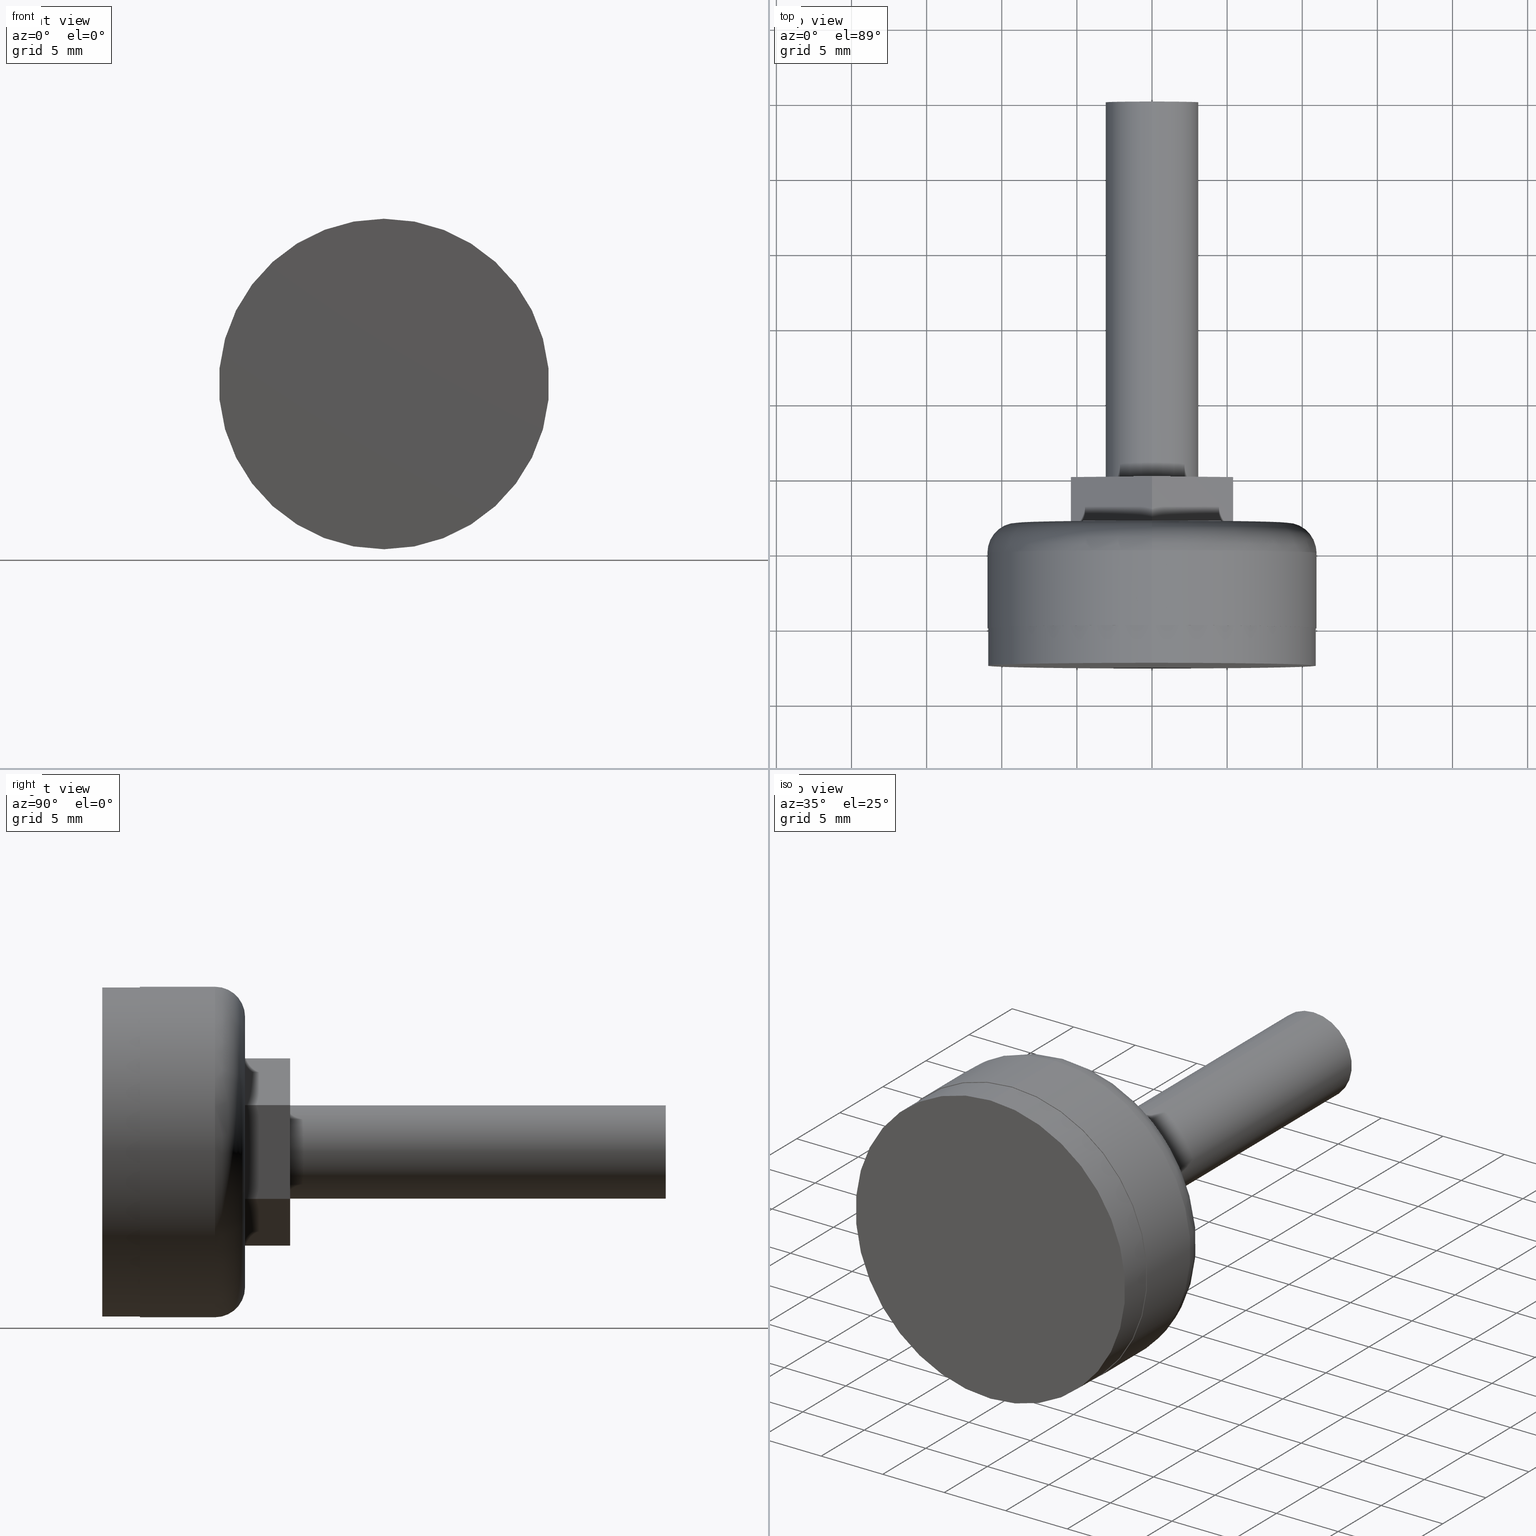
[diagram: canonical four-view strip — front | top / right | iso, engineering-drawing reading convention]
A machine part, canonical four-view strip (front | top / right | iso — engineering-drawing reading convention). The complete STEP part file that produces these views, byte-faithful:
ISO-10303-21;
HEADER;
FILE_DESCRIPTION (( 'STEP AP203' ),
    '1' );
FILE_NAME ('SA221-438FN.STEP',
    '2018-03-27T13:55:49',
    ( 'User2' ),
    ( '' ),
    'SwSTEP 2.0',
    'SolidWorks 2007',
    '' );
FILE_SCHEMA (( 'CONFIG_CONTROL_DESIGN' ));
ENDSEC;

DATA;
#1 = EDGE_CURVE ( 'NONE', #73, #89, #267, .T. ) ;
#2 = EDGE_CURVE ( 'NONE', #63, #86, #265, .T. ) ;
#3 = EDGE_CURVE ( 'NONE', #90, #63, #262, .T. ) ;
#4 = EDGE_CURVE ( 'NONE', #76, #86, #272, .T. ) ;
#5 = EDGE_CURVE ( 'NONE', #88, #83, #290, .T. ) ;
#6 = AXIS2_PLACEMENT_3D ( 'NONE', #584, #566, #553 ) ;
#7 = EDGE_CURVE ( 'NONE', #85, #91, #275, .T. ) ;
#8 = EDGE_CURVE ( 'NONE', #71, #90, #292, .T. ) ;
#9 = EDGE_CURVE ( 'NONE', #73, #80, #302, .T. ) ;
#10 = EDGE_CURVE ( 'NONE', #67, #63, #303, .T. ) ;
#11 = EDGE_CURVE ( 'NONE', #72, #71, #288, .T. ) ;
#12 = AXIS2_PLACEMENT_3D ( 'NONE', #570, #592, #548 ) ;
#13 = EDGE_CURVE ( 'NONE', #79, #66, #336, .T. ) ;
#14 = EDGE_CURVE ( 'NONE', #66, #88, #339, .T. ) ;
#15 = EDGE_CURVE ( 'NONE', #94, #80, #286, .T. ) ;
#16 = EDGE_CURVE ( 'NONE', #66, #81, #334, .T. ) ;
#17 = AXIS2_PLACEMENT_3D ( 'NONE', #201, #192, #208 ) ;
#18 = EDGE_CURVE ( 'NONE', #83, #88, #287, .T. ) ;
#19 = AXIS2_PLACEMENT_3D ( 'NONE', #130, #116, #109 ) ;
#20 = AXIS2_PLACEMENT_3D ( 'NONE', #178, #172, #167 ) ;
#21 = EDGE_CURVE ( 'NONE', #77, #68, #285, .T. ) ;
#22 = EDGE_CURVE ( 'NONE', #68, #77, #282, .T. ) ;
#23 = EDGE_CURVE ( 'NONE', #80, #94, #281, .T. ) ;
#24 = EDGE_CURVE ( 'NONE', #71, #67, #283, .T. ) ;
#25 = AXIS2_PLACEMENT_3D ( 'NONE', #203, #207, #194 ) ;
#26 = EDGE_CURVE ( 'NONE', #79, #83, #310, .T. ) ;
#27 = EDGE_CURVE ( 'NONE', #85, #69, #313, .T. ) ;
#28 = AXIS2_PLACEMENT_3D ( 'NONE', #591, #571, #569 ) ;
#29 = AXIS2_PLACEMENT_3D ( 'NONE', #557, #558, #585 ) ;
#30 = AXIS2_PLACEMENT_3D ( 'NONE', #158, #179, #166 ) ;
#31 = AXIS2_PLACEMENT_3D ( 'NONE', #219, #218, #182 ) ;
#32 = AXIS2_PLACEMENT_3D ( 'NONE', #561, #590, #575 ) ;
#33 = EDGE_CURVE ( 'NONE', #81, #70, #316, .T. ) ;
#34 = AXIS2_PLACEMENT_3D ( 'NONE', #61, #84, #87 ) ;
#35 = EDGE_CURVE ( 'NONE', #69, #72, #291, .T. ) ;
#36 = AXIS2_PLACEMENT_3D ( 'NONE', #577, #578, #551 ) ;
#37 = EDGE_CURVE ( 'NONE', #90, #76, #296, .T. ) ;
#38 = EDGE_CURVE ( 'NONE', #79, #70, #295, .T. ) ;
#39 = EDGE_CURVE ( 'NONE', #59, #77, #261, .T. ) ;
#40 = AXIS2_PLACEMENT_3D ( 'NONE', #573, #583, #574 ) ;
#41 = EDGE_CURVE ( 'NONE', #91, #92, #301, .T. ) ;
#42 = EDGE_CURVE ( 'NONE', #59, #75, #330, .T. ) ;
#43 = EDGE_CURVE ( 'NONE', #89, #94, #255, .T. ) ;
#44 = AXIS2_PLACEMENT_3D ( 'NONE', #204, #184, #191 ) ;
#45 = AXIS2_PLACEMENT_3D ( 'NONE', #212, #160, #168 ) ;
#46 = EDGE_CURVE ( 'NONE', #75, #59, #325, .T. ) ;
#47 = EDGE_CURVE ( 'NONE', #75, #68, #331, .T. ) ;
#48 = AXIS2_PLACEMENT_3D ( 'NONE', #82, #74, #93 ) ;
#49 = AXIS2_PLACEMENT_3D ( 'NONE', #562, #564, #588 ) ;
#50 = AXIS2_PLACEMENT_3D ( 'NONE', #174, #165, #210 ) ;
#51 = AXIS2_PLACEMENT_3D ( 'NONE', #563, #589, #595 ) ;
#52 = AXIS2_PLACEMENT_3D ( 'NONE', #195, #211, #216 ) ;
#53 = ADVANCED_FACE ( 'NONE', ( #332 ), #159, .T. ) ;
#54 = ADVANCED_FACE ( 'NONE', ( #256 ), #202, .F. ) ;
#55 = ADVANCED_FACE ( 'NONE', ( #297 ), #190, .F. ) ;
#56 = ADVANCED_FACE ( 'NONE', ( #314 ), #305, .T. ) ;
#57 = PRODUCT ( 'SA221-438FN', 'SA221-438FN', '', ( #437 ) ) ;
#58 = PERSON ( 'UNSPECIFIED', 'UNSPECIFIED', 'UNSPECIFIED', ('UNSPECIFIED'), ('UNSPECIFIED'), ('UNSPECIFIED') ) ;
#59 = VERTEX_POINT ( 'NONE', #164 ) ;
#60 = DIRECTION ( 'NONE',  ( 0.0000000000000000000, 0.0000000000000000000, 1.000000000000000000 ) ) ;
#61 = CARTESIAN_POINT ( 'NONE',  ( 0.0000000000000000000, 7.000000000000000000, 0.0000000000000000000 ) ) ;
#62 = CARTESIAN_POINT ( 'NONE',  ( -5.400000000000000400, 10.00000000000000000, -3.117691453623980400 ) ) ;
#63 = VERTEX_POINT ( 'NONE', #163 ) ;
#64 = VERTEX_POINT ( 'NONE', #180 ) ;
#65 = DIRECTION ( 'NONE',  ( -0.0000000000000000000, -1.000000000000000000, -0.0000000000000000000 ) ) ;
#66 = VERTEX_POINT ( 'NONE', #161 ) ;
#67 = VERTEX_POINT ( 'NONE', #198 ) ;
#68 = VERTEX_POINT ( 'NONE', #193 ) ;
#69 = VERTEX_POINT ( 'NONE', #187 ) ;
#70 = VERTEX_POINT ( 'NONE', #157 ) ;
#71 = VERTEX_POINT ( 'NONE', #175 ) ;
#72 = VERTEX_POINT ( 'NONE', #213 ) ;
#73 = VERTEX_POINT ( 'NONE', #181 ) ;
#74 = DIRECTION ( 'NONE',  ( 0.0000000000000000000, -1.000000000000000000, 0.0000000000000000000 ) ) ;
#75 = VERTEX_POINT ( 'NONE', #177 ) ;
#76 = VERTEX_POINT ( 'NONE', #217 ) ;
#77 = VERTEX_POINT ( 'NONE', #220 ) ;
#78 = CARTESIAN_POINT ( 'NONE',  ( -5.400000000000000400, 10.00000000000000000, 3.117691453623979900 ) ) ;
#79 = VERTEX_POINT ( 'NONE', #199 ) ;
#80 = VERTEX_POINT ( 'NONE', #162 ) ;
#81 = VERTEX_POINT ( 'NONE', #170 ) ;
#82 = CARTESIAN_POINT ( 'NONE',  ( 0.0000000000000000000, -2.500000000000000000, 0.0000000000000000000 ) ) ;
#83 = VERTEX_POINT ( 'NONE', #196 ) ;
#84 = DIRECTION ( 'NONE',  ( 0.0000000000000000000, 1.000000000000000000, 0.0000000000000000000 ) ) ;
#85 = VERTEX_POINT ( 'NONE', #173 ) ;
#86 = VERTEX_POINT ( 'NONE', #169 ) ;
#87 = DIRECTION ( 'NONE',  ( 0.0000000000000000000, 0.0000000000000000000, 1.000000000000000000 ) ) ;
#88 = VERTEX_POINT ( 'NONE', #186 ) ;
#89 = VERTEX_POINT ( 'NONE', #189 ) ;
#90 = VERTEX_POINT ( 'NONE', #215 ) ;
#91 = VERTEX_POINT ( 'NONE', #205 ) ;
#92 = VERTEX_POINT ( 'NONE', #214 ) ;
#93 = DIRECTION ( 'NONE',  ( 0.0000000000000000000, 0.0000000000000000000, -1.000000000000000000 ) ) ;
#94 = VERTEX_POINT ( 'NONE', #188 ) ;
#95 = DIRECTION ( 'NONE',  ( -0.0000000000000000000, -1.000000000000000000, -0.0000000000000000000 ) ) ;
#96 = CARTESIAN_POINT ( 'NONE',  ( -5.400000000000000400, 7.000000000000000000, -3.117691453623980400 ) ) ;
#97 = UNCERTAINTY_MEASURE_WITH_UNIT (LENGTH_MEASURE( 1.000000000000000100E-005 ), #432, 'distance_accuracy_value', 'NONE');
#98 = ADVANCED_FACE ( 'NONE', ( #312 ), #266, .T. ) ;
#99 = MANIFOLD_SOLID_BREP ( 'NONE', #271 ) ;
#100 = ADVANCED_FACE ( 'NONE', ( #270 ), #318, .T. ) ;
#101 = ADVANCED_FACE ( 'NONE', ( #257 ), #260, .T. ) ;
#102 = ADVANCED_FACE ( 'NONE', ( #263, #329 ), #200, .T. ) ;
#103 = ADVANCED_FACE ( 'NONE', ( #326, #322 ), #139, .T. ) ;
#104 = CARTESIAN_POINT ( 'NONE',  ( 0.0000000000000000000, 5.000000000000000000, 0.0000000000000000000 ) ) ;
#105 = DIRECTION ( 'NONE',  ( -0.0000000000000000000, -1.000000000000000000, -0.0000000000000000000 ) ) ;
#106 = CARTESIAN_POINT ( 'NONE',  ( -5.400000000000000400, 10.00000000000000000, 3.117691453623979900 ) ) ;
#107 = DIRECTION ( 'NONE',  ( -0.0000000000000000000, -1.000000000000000000, -0.0000000000000000000 ) ) ;
#108 = DIRECTION ( 'NONE',  ( -0.8660254037844384900, 0.0000000000000000000, -0.5000000000000002200 ) ) ;
#109 = DIRECTION ( 'NONE',  ( 0.0000000000000000000, 0.0000000000000000000, 1.000000000000000000 ) ) ;
#110 = DIRECTION ( 'NONE',  ( -0.0000000000000000000, -1.000000000000000000, -0.0000000000000000000 ) ) ;
#111 = DIRECTION ( 'NONE',  ( -0.8660254037844387100, 0.0000000000000000000, 0.4999999999999997800 ) ) ;
#112 = CARTESIAN_POINT ( 'NONE',  ( 5.399999999999999500, 7.000000000000000000, -3.117691453623979500 ) ) ;
#113 = CARTESIAN_POINT ( 'NONE',  ( -5.400000000000000400, 10.00000000000000000, -3.117691453623980400 ) ) ;
#114 = DIRECTION ( 'NONE',  ( 0.0000000000000000000, 0.0000000000000000000, -1.000000000000000000 ) ) ;
#115 = CARTESIAN_POINT ( 'NONE',  ( -5.400000000000000400, 10.00000000000000000, 3.117691453623979900 ) ) ;
#116 = DIRECTION ( 'NONE',  ( 0.0000000000000000000, 1.000000000000000000, -0.0000000000000000000 ) ) ;
#117 = DIRECTION ( 'NONE',  ( 0.8660254037844386000, 0.0000000000000000000, 0.5000000000000000000 ) ) ;
#118 = DIRECTION ( 'NONE',  ( 0.0000000000000000000, 1.000000000000000000, 0.0000000000000000000 ) ) ;
#119 = DIRECTION ( 'NONE',  ( 0.0000000000000000000, 0.0000000000000000000, -1.000000000000000000 ) ) ;
#120 = PLANE ( 'NONE',  #222 ) ;
#121 = CARTESIAN_POINT ( 'NONE',  ( 5.399999999999999500, 10.00000000000000000, 3.117691453623982600 ) ) ;
#122 = DIRECTION ( 'NONE',  ( 0.0000000000000000000, -0.0000000000000000000, 1.000000000000000000 ) ) ;
#123 = DIRECTION ( 'NONE',  ( 0.0000000000000000000, 0.0000000000000000000, 1.000000000000000000 ) ) ;
#124 = DIRECTION ( 'NONE',  ( 0.0000000000000000000, 1.000000000000000000, 0.0000000000000000000 ) ) ;
#125 = DIRECTION ( 'NONE',  ( -0.4999999999999998300, 0.0000000000000000000, -0.8660254037844388200 ) ) ;
#126 = CARTESIAN_POINT ( 'NONE',  ( 5.399999999999999500, 10.00000000000000000, -3.117691453623979500 ) ) ;
#127 = PLANE ( 'NONE',  #252 ) ;
#128 = CARTESIAN_POINT ( 'NONE',  ( 0.0000000000000000000, 0.0000000000000000000, 0.0000000000000000000 ) ) ;
#129 = CARTESIAN_POINT ( 'NONE',  ( -7.872804065101680700E-016, 10.00000000000000000, 6.235382907247959800 ) ) ;
#130 = CARTESIAN_POINT ( 'NONE',  ( -5.400000000000000400, 10.00000000000000000, -9.353074360871939800 ) ) ;
#131 = DIRECTION ( 'NONE',  ( -0.8660254037844386000, 0.0000000000000000000, -0.5000000000000000000 ) ) ;
#132 = CARTESIAN_POINT ( 'NONE',  ( 5.399999999999999500, 7.000000000000000000, 3.117691453623982600 ) ) ;
#133 = CARTESIAN_POINT ( 'NONE',  ( 0.0000000000000000000, 7.000000000000000000, 0.0000000000000000000 ) ) ;
#134 = DIRECTION ( 'NONE',  ( -0.0000000000000000000, -1.000000000000000000, -0.0000000000000000000 ) ) ;
#135 = DIRECTION ( 'NONE',  ( 0.8660254037844384900, 0.0000000000000000000, 0.5000000000000001100 ) ) ;
#136 = DIRECTION ( 'NONE',  ( 1.000000000000000000, 0.0000000000000000000, 0.0000000000000000000 ) ) ;
#137 = DIRECTION ( 'NONE',  ( 0.8660254037844384900, 0.0000000000000000000, 0.5000000000000001100 ) ) ;
#138 = PLANE ( 'NONE',  #232 ) ;
#139 = PLANE ( 'NONE',  #241 ) ;
#140 = CARTESIAN_POINT ( 'NONE',  ( 0.0000000000000000000, 35.00000000000000000, 0.0000000000000000000 ) ) ;
#141 = DIRECTION ( 'NONE',  ( 0.0000000000000000000, 0.0000000000000000000, 1.000000000000000000 ) ) ;
#142 = CARTESIAN_POINT ( 'NONE',  ( 5.399999999999999500, 10.00000000000000000, -3.117691453623979500 ) ) ;
#143 = DIRECTION ( 'NONE',  ( -0.5000000000000001100, 0.0000000000000000000, 0.8660254037844387100 ) ) ;
#144 = PLANE ( 'NONE',  #236 ) ;
#145 = DIRECTION ( 'NONE',  ( 0.5000000000000003300, 0.0000000000000000000, -0.8660254037844386000 ) ) ;
#146 = DIRECTION ( 'NONE',  ( 0.0000000000000000000, 0.0000000000000000000, -1.000000000000000000 ) ) ;
#147 = CARTESIAN_POINT ( 'NONE',  ( 0.0000000000000000000, -2.500000000000000000, 0.0000000000000000000 ) ) ;
#148 = DIRECTION ( 'NONE',  ( 0.0000000000000000000, 0.0000000000000000000, -1.000000000000000000 ) ) ;
#149 = DIRECTION ( 'NONE',  ( 0.0000000000000000000, -1.000000000000000000, 0.0000000000000000000 ) ) ;
#150 = CARTESIAN_POINT ( 'NONE',  ( -5.400000000000000400, 7.000000000000000000, 3.117691453623979900 ) ) ;
#151 = ADVANCED_FACE ( 'NONE', ( #327 ), #276, .T. ) ;
#152 = ADVANCED_FACE ( 'NONE', ( #321 ), #120, .F. ) ;
#153 = ADVANCED_FACE ( 'NONE', ( #317 ), #144, .F. ) ;
#154 = ADVANCED_BREP_SHAPE_REPRESENTATION ( 'SA221-438FN', ( #99, #246 ), #388 ) ;
#155 = ADVANCED_FACE ( 'NONE', ( #308 ), #127, .F. ) ;
#156 = ADVANCED_FACE ( 'NONE', ( #320 ), #138, .F. ) ;
#157 = CARTESIAN_POINT ( 'NONE',  ( 0.0000000000000000000, 0.0000000000000000000, -11.00000000000000000 ) ) ;
#158 = CARTESIAN_POINT ( 'NONE',  ( 0.0000000000000000000, 7.000000000000000000, 0.0000000000000000000 ) ) ;
#159 = PLANE ( 'NONE',  #31 ) ;
#160 = DIRECTION ( 'NONE',  ( 0.0000000000000000000, 1.000000000000000000, 0.0000000000000000000 ) ) ;
#161 = CARTESIAN_POINT ( 'NONE',  ( 1.347111479062088400E-015, 5.000000000000000000, 11.00000000000000000 ) ) ;
#162 = CARTESIAN_POINT ( 'NONE',  ( 1.340988245066351700E-015, 0.0000000000000000000, -10.94999999999999900 ) ) ;
#163 = CARTESIAN_POINT ( 'NONE',  ( -5.400000000000000400, 7.000000000000000000, -3.117691453623980400 ) ) ;
#164 = CARTESIAN_POINT ( 'NONE',  ( 3.796405077356794900E-016, 35.00000000000000000, 3.100000000000000100 ) ) ;
#165 = DIRECTION ( 'NONE',  ( 0.0000000000000000000, 1.000000000000000000, 0.0000000000000000000 ) ) ;
#166 = DIRECTION ( 'NONE',  ( 0.0000000000000000000, 0.0000000000000000000, -1.000000000000000000 ) ) ;
#167 = DIRECTION ( 'NONE',  ( 0.0000000000000000000, 0.0000000000000000000, -1.000000000000000000 ) ) ;
#168 = DIRECTION ( 'NONE',  ( 0.0000000000000000000, 0.0000000000000000000, 1.000000000000000000 ) ) ;
#169 = CARTESIAN_POINT ( 'NONE',  ( -5.400000000000000400, 7.000000000000000000, 3.117691453623979900 ) ) ;
#170 = CARTESIAN_POINT ( 'NONE',  ( 1.347111479062088400E-015, 0.0000000000000000000, 11.00000000000000000 ) ) ;
#171 = DIRECTION ( 'NONE',  ( 0.8660254037844387100, 0.0000000000000000000, -0.4999999999999997200 ) ) ;
#172 = DIRECTION ( 'NONE',  ( -0.0000000000000000000, -1.000000000000000000, -0.0000000000000000000 ) ) ;
#173 = CARTESIAN_POINT ( 'NONE',  ( -7.872804065101680700E-016, 10.00000000000000000, 6.235382907247959800 ) ) ;
#174 = CARTESIAN_POINT ( 'NONE',  ( 0.0000000000000000000, 35.00000000000000000, 0.0000000000000000000 ) ) ;
#175 = CARTESIAN_POINT ( 'NONE',  ( 3.535262311868472300E-016, 10.00000000000000000, -6.235382907247958100 ) ) ;
#176 = CARTESIAN_POINT ( 'NONE',  ( -7.872804065101680700E-016, 7.000000000000000000, 6.235382907247959800 ) ) ;
#177 = CARTESIAN_POINT ( 'NONE',  ( 0.0000000000000000000, 35.00000000000000000, -3.100000000000000100 ) ) ;
#178 = CARTESIAN_POINT ( 'NONE',  ( 0.0000000000000000000, 35.00000000000000000, 0.0000000000000000000 ) ) ;
#179 = DIRECTION ( 'NONE',  ( -0.0000000000000000000, -1.000000000000000000, -0.0000000000000000000 ) ) ;
#180 = CARTESIAN_POINT ( 'NONE',  ( 5.399999999999999500, 7.000000000000000000, -3.117691453623979500 ) ) ;
#181 = CARTESIAN_POINT ( 'NONE',  ( 1.340988245066351700E-015, -2.500000000000000000, -10.94999999999999900 ) ) ;
#182 = DIRECTION ( 'NONE',  ( 0.0000000000000000000, -0.0000000000000000000, 1.000000000000000000 ) ) ;
#183 = CARTESIAN_POINT ( 'NONE',  ( 0.0000000000000000000, 35.00000000000000000, -3.100000000000000100 ) ) ;
#184 = DIRECTION ( 'NONE',  ( -0.0000000000000000000, 1.000000000000000000, -0.0000000000000000000 ) ) ;
#185 = DIRECTION ( 'NONE',  ( -0.0000000000000000000, -1.000000000000000000, -0.0000000000000000000 ) ) ;
#186 = CARTESIAN_POINT ( 'NONE',  ( 0.0000000000000000000, 7.000000000000000000, 9.000000000000000000 ) ) ;
#187 = CARTESIAN_POINT ( 'NONE',  ( 5.399999999999999500, 10.00000000000000000, 3.117691453623982600 ) ) ;
#188 = CARTESIAN_POINT ( 'NONE',  ( 0.0000000000000000000, 0.0000000000000000000, 10.94999999999999900 ) ) ;
#189 = CARTESIAN_POINT ( 'NONE',  ( 0.0000000000000000000, -2.500000000000000000, 10.94999999999999900 ) ) ;
#190 = PLANE ( 'NONE',  #17 ) ;
#191 = DIRECTION ( 'NONE',  ( 0.0000000000000000000, 0.0000000000000000000, 1.000000000000000000 ) ) ;
#192 = DIRECTION ( 'NONE',  ( 0.4999999999999998300, -0.0000000000000000000, 0.8660254037844387100 ) ) ;
#193 = CARTESIAN_POINT ( 'NONE',  ( 0.0000000000000000000, 10.00000000000000200, -3.100000000000000100 ) ) ;
#194 = DIRECTION ( 'NONE',  ( 0.0000000000000000000, 0.0000000000000000000, 1.000000000000000000 ) ) ;
#195 = CARTESIAN_POINT ( 'NONE',  ( 0.0000000000000000000, 5.000000000000000000, 0.0000000000000000000 ) ) ;
#196 = CARTESIAN_POINT ( 'NONE',  ( 1.224646799147353300E-015, 7.000000000000000000, -9.000000000000000000 ) ) ;
#197 = DIRECTION ( 'NONE',  ( -0.0000000000000000000, 1.000000000000000000, -0.0000000000000000000 ) ) ;
#198 = CARTESIAN_POINT ( 'NONE',  ( 3.535262311868472300E-016, 7.000000000000000000, -6.235382907247958100 ) ) ;
#199 = CARTESIAN_POINT ( 'NONE',  ( 0.0000000000000000000, 5.000000000000000000, -11.00000000000000000 ) ) ;
#200 = PLANE ( 'NONE',  #19 ) ;
#201 = CARTESIAN_POINT ( 'NONE',  ( 3.535262311868472300E-016, 10.00000000000000000, -6.235382907247958100 ) ) ;
#202 = PLANE ( 'NONE',  #25 ) ;
#203 = CARTESIAN_POINT ( 'NONE',  ( 5.399999999999999500, 10.00000000000000000, 3.117691453623982600 ) ) ;
#204 = CARTESIAN_POINT ( 'NONE',  ( 0.0000000000000000000, -2.500000000000000000, 0.0000000000000000000 ) ) ;
#205 = CARTESIAN_POINT ( 'NONE',  ( -7.872804065101680700E-016, 7.000000000000000000, 6.235382907247959800 ) ) ;
#206 = DIRECTION ( 'NONE',  ( -0.0000000000000000000, -1.000000000000000000, -0.0000000000000000000 ) ) ;
#207 = DIRECTION ( 'NONE',  ( -1.000000000000000000, 0.0000000000000000000, 0.0000000000000000000 ) ) ;
#208 = DIRECTION ( 'NONE',  ( 0.8660254037844387100, 0.0000000000000000000, -0.4999999999999998300 ) ) ;
#209 = CARTESIAN_POINT ( 'NONE',  ( 0.0000000000000000000, -2.500000000000000000, 10.94999999999999900 ) ) ;
#210 = DIRECTION ( 'NONE',  ( 0.0000000000000000000, 0.0000000000000000000, 1.000000000000000000 ) ) ;
#211 = DIRECTION ( 'NONE',  ( 0.0000000000000000000, 1.000000000000000000, 0.0000000000000000000 ) ) ;
#212 = CARTESIAN_POINT ( 'NONE',  ( 0.0000000000000000000, 35.00000000000000000, 0.0000000000000000000 ) ) ;
#213 = CARTESIAN_POINT ( 'NONE',  ( 5.399999999999999500, 10.00000000000000000, -3.117691453623979500 ) ) ;
#214 = CARTESIAN_POINT ( 'NONE',  ( 5.399999999999999500, 7.000000000000000000, 3.117691453623982600 ) ) ;
#215 = CARTESIAN_POINT ( 'NONE',  ( -5.400000000000000400, 10.00000000000000000, -3.117691453623980400 ) ) ;
#216 = DIRECTION ( 'NONE',  ( 0.0000000000000000000, 0.0000000000000000000, 1.000000000000000000 ) ) ;
#217 = CARTESIAN_POINT ( 'NONE',  ( -5.400000000000000400, 10.00000000000000000, 3.117691453623979900 ) ) ;
#218 = DIRECTION ( 'NONE',  ( 0.0000000000000000000, 1.000000000000000000, 0.0000000000000000000 ) ) ;
#219 = CARTESIAN_POINT ( 'NONE',  ( 0.0000000000000000000, 35.00000000000000000, 0.0000000000000000000 ) ) ;
#220 = CARTESIAN_POINT ( 'NONE',  ( 3.796405077356794900E-016, 10.00000000000000200, 3.100000000000000100 ) ) ;
#221 = AXIS2_PLACEMENT_3D ( 'NONE', #422, #418, #433 ) ;
#222 = AXIS2_PLACEMENT_3D ( 'NONE', #129, #125, #111 ) ;
#223 = APPROVAL ( #445, 'UNSPECIFIED' ) ;
#224 = APPROVAL ( #419, 'UNSPECIFIED' ) ;
#225 = AXIS2_PLACEMENT_3D ( 'NONE', #435, #430, #413 ) ;
#226 = CC_DESIGN_DATE_AND_TIME_ASSIGNMENT ( #405, #424, ( #238 ) ) ;
#227 = CC_DESIGN_PERSON_AND_ORGANIZATION_ASSIGNMENT ( #375, #414, ( #57 ) ) ;
#228 = PRODUCT_DEFINITION_FORMATION_WITH_SPECIFIED_SOURCE ( 'ANY', '', #57, .NOT_KNOWN. ) ;
#229 = AXIS2_PLACEMENT_3D ( 'NONE', #410, #428, #448 ) ;
#230 = AXIS2_PLACEMENT_3D ( 'NONE', #128, #118, #123 ) ;
#231 = AXIS2_PLACEMENT_3D ( 'NONE', #415, #444, #425 ) ;
#232 = AXIS2_PLACEMENT_3D ( 'NONE', #142, #143, #117 ) ;
#233 = AXIS2_PLACEMENT_3D ( 'NONE', #104, #107, #141 ) ;
#234 = AXIS2_PLACEMENT_3D ( 'NONE', #439, #408, #441 ) ;
#235 = AXIS2_PLACEMENT_3D ( 'NONE', #147, #149, #146 ) ;
#236 = AXIS2_PLACEMENT_3D ( 'NONE', #113, #136, #114 ) ;
#237 = CC_DESIGN_PERSON_AND_ORGANIZATION_ASSIGNMENT ( #365, #436, ( #238 ) ) ;
#238 = PRODUCT_DEFINITION ( 'UNKNOWN', '', #228, #341 ) ;
#239 = CC_DESIGN_APPROVAL ( #223, ( #238 ) ) ;
#240 = CC_DESIGN_PERSON_AND_ORGANIZATION_ASSIGNMENT ( #357, #411, ( #404 ) ) ;
#241 = AXIS2_PLACEMENT_3D ( 'NONE', #133, #124, #122 ) ;
#242 = CC_DESIGN_DATE_AND_TIME_ASSIGNMENT ( #363, #409, ( #404 ) ) ;
#243 = CC_DESIGN_PERSON_AND_ORGANIZATION_ASSIGNMENT ( #367, #421, ( #228 ) ) ;
#244 = CC_DESIGN_PERSON_AND_ORGANIZATION_ASSIGNMENT ( #353, #427, ( #228 ) ) ;
#245 = CC_DESIGN_APPROVAL ( #224, ( #228 ) ) ;
#246 = AXIS2_PLACEMENT_3D ( 'NONE', #423, #446, #429 ) ;
#247 = APPROVAL ( #416, 'UNSPECIFIED' ) ;
#248 = CC_DESIGN_APPROVAL ( #247, ( #404 ) ) ;
#249 = CC_DESIGN_SECURITY_CLASSIFICATION ( #404, ( #228 ) ) ;
#250 = PRODUCT_RELATED_PRODUCT_CATEGORY ( 'detail', '', ( #57 ) ) ;
#251 = AXIS2_PLACEMENT_3D ( 'NONE', #140, #110, #148 ) ;
#252 = AXIS2_PLACEMENT_3D ( 'NONE', #115, #145, #108 ) ;
#253 = VECTOR ( 'NONE', #197, 1000.000000000000000 ) ;
#254 = VECTOR ( 'NONE', #171, 1000.000000000000100 ) ;
#255 = LINE ( 'NONE', #209, #253 ) ;
#256 = FACE_OUTER_BOUND ( 'NONE', #501, .T. ) ;
#257 = FACE_OUTER_BOUND ( 'NONE', #506, .T. ) ;
#258 = VECTOR ( 'NONE', #95, 1000.000000000000000 ) ;
#259 = VECTOR ( 'NONE', #559, 1000.000000000000000 ) ;
#260 = TOROIDAL_SURFACE ( 'NONE', #52, 9.000000000000000000, 2.000000000000000000 ) ;
#261 = LINE ( 'NONE', #580, #328 ) ;
#262 = LINE ( 'NONE', #62, #258 ) ;
#263 = FACE_OUTER_BOUND ( 'NONE', #529, .T. ) ;
#264 = VECTOR ( 'NONE', #60, 1000.000000000000000 ) ;
#265 = LINE ( 'NONE', #96, #264 ) ;
#266 = CYLINDRICAL_SURFACE ( 'NONE', #30, 11.00000000000000000 ) ;
#267 = CIRCLE ( 'NONE', #48, 10.94999999999999900 ) ;
#268 = ORIENTED_EDGE ( 'NONE', *, *, #342, .T. ) ;
#269 = ORIENTED_EDGE ( 'NONE', *, *, #11, .F. ) ;
#270 = FACE_OUTER_BOUND ( 'NONE', #530, .T. ) ;
#271 = CLOSED_SHELL ( 'NONE', ( #56, #452, #100, #98, #103, #450, #453, #454, #451, #101, #102, #156, #55, #153, #155, #152, #54, #53, #151 ) ) ;
#272 = LINE ( 'NONE', #78, #277 ) ;
#273 = ORIENTED_EDGE ( 'NONE', *, *, #22, .F. ) ;
#274 = ORIENTED_EDGE ( 'NONE', *, *, #21, .F. ) ;
#275 = LINE ( 'NONE', #593, #304 ) ;
#276 = CYLINDRICAL_SURFACE ( 'NONE', #251, 3.100000000000000100 ) ;
#277 = VECTOR ( 'NONE', #65, 1000.000000000000000 ) ;
#278 = LINE ( 'NONE', #112, #306 ) ;
#279 = ORIENTED_EDGE ( 'NONE', *, *, #3, .F. ) ;
#280 = ORIENTED_EDGE ( 'NONE', *, *, #27, .T. ) ;
#281 = CIRCLE ( 'NONE', #32, 10.94999999999999900 ) ;
#282 = CIRCLE ( 'NONE', #28, 3.100000000000000100 ) ;
#283 = LINE ( 'NONE', #572, #284 ) ;
#284 = VECTOR ( 'NONE', #567, 1000.000000000000000 ) ;
#285 = CIRCLE ( 'NONE', #40, 3.100000000000000100 ) ;
#286 = CIRCLE ( 'NONE', #12, 10.94999999999999900 ) ;
#287 = CIRCLE ( 'NONE', #29, 9.000000000000000000 ) ;
#288 = LINE ( 'NONE', #586, #337 ) ;
#289 = VECTOR ( 'NONE', #556, 1000.000000000000100 ) ;
#290 = CIRCLE ( 'NONE', #34, 9.000000000000000000 ) ;
#291 = LINE ( 'NONE', #560, #294 ) ;
#292 = LINE ( 'NONE', #587, #293 ) ;
#293 = VECTOR ( 'NONE', #554, 1000.000000000000100 ) ;
#294 = VECTOR ( 'NONE', #555, 1000.000000000000000 ) ;
#295 = LINE ( 'NONE', #579, #299 ) ;
#296 = LINE ( 'NONE', #581, #300 ) ;
#297 = FACE_OUTER_BOUND ( 'NONE', #545, .T. ) ;
#298 = CIRCLE ( 'NONE', #235, 10.94999999999999900 ) ;
#299 = VECTOR ( 'NONE', #547, 1000.000000000000000 ) ;
#300 = VECTOR ( 'NONE', #550, 1000.000000000000000 ) ;
#301 = LINE ( 'NONE', #176, #254 ) ;
#302 = LINE ( 'NONE', #568, #259 ) ;
#303 = LINE ( 'NONE', #549, #289 ) ;
#304 = VECTOR ( 'NONE', #576, 1000.000000000000000 ) ;
#305 = CYLINDRICAL_SURFACE ( 'NONE', #20, 3.100000000000000100 ) ;
#306 = VECTOR ( 'NONE', #131, 1000.000000000000200 ) ;
#307 = ORIENTED_EDGE ( 'NONE', *, *, #35, .T. ) ;
#308 = FACE_OUTER_BOUND ( 'NONE', #508, .T. ) ;
#309 = ORIENTED_EDGE ( 'NONE', *, *, #24, .F. ) ;
#310 = CIRCLE ( 'NONE', #49, 2.000000000000000000 ) ;
#311 = ORIENTED_EDGE ( 'NONE', *, *, #10, .T. ) ;
#312 = FACE_OUTER_BOUND ( 'NONE', #517, .T. ) ;
#313 = LINE ( 'NONE', #594, #315 ) ;
#314 = FACE_OUTER_BOUND ( 'NONE', #543, .T. ) ;
#315 = VECTOR ( 'NONE', #565, 1000.000000000000100 ) ;
#316 = CIRCLE ( 'NONE', #36, 11.00000000000000000 ) ;
#317 = FACE_OUTER_BOUND ( 'NONE', #527, .T. ) ;
#318 = CYLINDRICAL_SURFACE ( 'NONE', #44, 10.94999999999999900 ) ;
#319 = CIRCLE ( 'NONE', #230, 11.00000000000000000 ) ;
#320 = FACE_OUTER_BOUND ( 'NONE', #531, .T. ) ;
#321 = FACE_OUTER_BOUND ( 'NONE', #503, .T. ) ;
#322 = FACE_BOUND ( 'NONE', #459, .T. ) ;
#323 = LINE ( 'NONE', #126, #386 ) ;
#324 = VECTOR ( 'NONE', #185, 1000.000000000000000 ) ;
#325 = CIRCLE ( 'NONE', #45, 3.100000000000000100 ) ;
#326 = FACE_OUTER_BOUND ( 'NONE', #502, .T. ) ;
#327 = FACE_OUTER_BOUND ( 'NONE', #507, .T. ) ;
#328 = VECTOR ( 'NONE', #206, 1000.000000000000000 ) ;
#329 = FACE_BOUND ( 'NONE', #525, .T. ) ;
#330 = CIRCLE ( 'NONE', #50, 3.100000000000000100 ) ;
#331 = LINE ( 'NONE', #183, #324 ) ;
#332 = FACE_OUTER_BOUND ( 'NONE', #509, .T. ) ;
#333 = VECTOR ( 'NONE', #582, 1000.000000000000000 ) ;
#334 = LINE ( 'NONE', #552, #333 ) ;
#335 = ORIENTED_EDGE ( 'NONE', *, *, #345, .T. ) ;
#336 = CIRCLE ( 'NONE', #51, 11.00000000000000000 ) ;
#337 = VECTOR ( 'NONE', #546, 1000.000000000000200 ) ;
#338 = ORIENTED_EDGE ( 'NONE', *, *, #2, .F. ) ;
#339 = CIRCLE ( 'NONE', #6, 2.000000000000000000 ) ;
#340 = PRODUCT_DEFINITION_SHAPE ( 'NONE', 'NONE',  #238 ) ;
#341 = DESIGN_CONTEXT ( 'detailed design', #443, 'design' ) ;
#342 = EDGE_CURVE ( 'NONE', #64, #67, #278, .T. ) ;
#343 = EDGE_CURVE ( 'NONE', #70, #81, #319, .T. ) ;
#344 = EDGE_CURVE ( 'NONE', #89, #73, #298, .T. ) ;
#345 = EDGE_CURVE ( 'NONE', #72, #64, #323, .T. ) ;
#346 = EDGE_CURVE ( 'NONE', #76, #85, #384, .T. ) ;
#347 = EDGE_CURVE ( 'NONE', #92, #64, #354, .T. ) ;
#348 = EDGE_CURVE ( 'NONE', #66, #79, #355, .T. ) ;
#349 = EDGE_CURVE ( 'NONE', #69, #92, #403, .T. ) ;
#350 = EDGE_CURVE ( 'NONE', #86, #91, #376, .T. ) ;
#351 = CALENDAR_DATE ( 2018, 27, 3 ) ;
#352 = APPROVAL_DATE_TIME ( #407, #247 ) ;
#353 = PERSON_AND_ORGANIZATION ( #58, #379 ) ;
#354 = LINE ( 'NONE', #132, #356 ) ;
#355 = CIRCLE ( 'NONE', #233, 11.00000000000000000 ) ;
#356 = VECTOR ( 'NONE', #119, 1000.000000000000000 ) ;
#357 = PERSON_AND_ORGANIZATION ( #58, #379 ) ;
#358 = LOCAL_TIME ( 10, 55, 49.00000000000000000, #389 ) ;
#359 = COORDINATED_UNIVERSAL_TIME_OFFSET ( 3, 0, .BEHIND. ) ;
#360 = COORDINATED_UNIVERSAL_TIME_OFFSET ( 3, 0, .BEHIND. ) ;
#361 = CALENDAR_DATE ( 2018, 27, 3 ) ;
#362 = FACE_OUTER_BOUND ( 'NONE', #504, .T. ) ;
#363 = DATE_AND_TIME ( #361, #364 ) ;
#364 = LOCAL_TIME ( 10, 55, 49.00000000000000000, #359 ) ;
#365 = PERSON_AND_ORGANIZATION ( #58, #379 ) ;
#366 = COORDINATED_UNIVERSAL_TIME_OFFSET ( 3, 0, .BEHIND. ) ;
#367 = PERSON_AND_ORGANIZATION ( #58, #379 ) ;
#368 = APPROVAL_DATE_TIME ( #370, #224 ) ;
#369 = FACE_OUTER_BOUND ( 'NONE', #475, .T. ) ;
#370 = DATE_AND_TIME ( #377, #401 ) ;
#371 = CYLINDRICAL_SURFACE ( 'NONE', #221, 10.94999999999999900 ) ;
#372 = DATE_AND_TIME ( #390, #358 ) ;
#373 = PERSON_AND_ORGANIZATION ( #58, #379 ) ;
#374 = TOROIDAL_SURFACE ( 'NONE', #229, 9.000000000000000000, 2.000000000000000000 ) ;
#375 = PERSON_AND_ORGANIZATION ( #58, #379 ) ;
#376 = LINE ( 'NONE', #150, #396 ) ;
#377 = CALENDAR_DATE ( 2018, 27, 3 ) ;
#378 = APPROVAL_PERSON_ORGANIZATION ( #399, #223, #417 ) ;
#379 = ORGANIZATION ( 'UNSPECIFIED', 'UNSPECIFIED', '' ) ;
#380 = VECTOR ( 'NONE', #135, 1000.000000000000200 ) ;
#381 = CYLINDRICAL_SURFACE ( 'NONE', #225, 11.00000000000000000 ) ;
#382 = LOCAL_TIME ( 10, 55, 49.00000000000000000, #360 ) ;
#383 = PERSON_AND_ORGANIZATION ( #58, #379 ) ;
#384 = LINE ( 'NONE', #106, #380 ) ;
#385 = VECTOR ( 'NONE', #134, 1000.000000000000000 ) ;
#386 = VECTOR ( 'NONE', #105, 1000.000000000000000 ) ;
#387 = LOCAL_TIME ( 10, 55, 49.00000000000000000, #366 ) ;
#388 =( GEOMETRIC_REPRESENTATION_CONTEXT ( 3 ) GLOBAL_UNCERTAINTY_ASSIGNED_CONTEXT ( ( #97 ) ) GLOBAL_UNIT_ASSIGNED_CONTEXT ( ( #432, #434, #431 ) ) REPRESENTATION_CONTEXT ( 'NONE', 'WORKASPACE' ) );
#389 = COORDINATED_UNIVERSAL_TIME_OFFSET ( 3, 0, .BEHIND. ) ;
#390 = CALENDAR_DATE ( 2018, 27, 3 ) ;
#391 = SHAPE_DEFINITION_REPRESENTATION ( #340, #154 ) ;
#392 = COORDINATED_UNIVERSAL_TIME_OFFSET ( 3, 0, .BEHIND. ) ;
#393 = APPROVAL_PERSON_ORGANIZATION ( #373, #247, #449 ) ;
#394 = APPROVAL_PERSON_ORGANIZATION ( #383, #224, #412 ) ;
#395 = FACE_OUTER_BOUND ( 'NONE', #505, .T. ) ;
#396 = VECTOR ( 'NONE', #137, 1000.000000000000200 ) ;
#397 = FACE_BOUND ( 'NONE', #528, .T. ) ;
#398 = APPROVAL_DATE_TIME ( #372, #223 ) ;
#399 = PERSON_AND_ORGANIZATION ( #58, #379 ) ;
#400 = CALENDAR_DATE ( 2018, 27, 3 ) ;
#401 = LOCAL_TIME ( 10, 55, 49.00000000000000000, #392 ) ;
#402 = FACE_OUTER_BOUND ( 'NONE', #514, .T. ) ;
#403 = LINE ( 'NONE', #121, #385 ) ;
#404 = SECURITY_CLASSIFICATION ( '', '', #420 ) ;
#405 = DATE_AND_TIME ( #400, #387 ) ;
#406 = FACE_OUTER_BOUND ( 'NONE', #544, .T. ) ;
#407 = DATE_AND_TIME ( #351, #382 ) ;
#408 = DIRECTION ( 'NONE',  ( 0.0000000000000000000, 1.000000000000000000, 0.0000000000000000000 ) ) ;
#409 = DATE_TIME_ROLE ( 'classification_date' ) ;
#410 = CARTESIAN_POINT ( 'NONE',  ( 0.0000000000000000000, 5.000000000000000000, 0.0000000000000000000 ) ) ;
#411 = PERSON_AND_ORGANIZATION_ROLE ( 'classification_officer' ) ;
#412 = APPROVAL_ROLE ( '' ) ;
#413 = DIRECTION ( 'NONE',  ( 0.0000000000000000000, 0.0000000000000000000, -1.000000000000000000 ) ) ;
#414 = PERSON_AND_ORGANIZATION_ROLE ( 'design_owner' ) ;
#415 = CARTESIAN_POINT ( 'NONE',  ( 0.0000000000000000000, -2.500000000000000000, 0.0000000000000000000 ) ) ;
#416 = APPROVAL_STATUS ( 'not_yet_approved' ) ;
#417 = APPROVAL_ROLE ( '' ) ;
#418 = DIRECTION ( 'NONE',  ( -0.0000000000000000000, 1.000000000000000000, -0.0000000000000000000 ) ) ;
#419 = APPROVAL_STATUS ( 'not_yet_approved' ) ;
#420 = SECURITY_CLASSIFICATION_LEVEL ( 'unclassified' ) ;
#421 = PERSON_AND_ORGANIZATION_ROLE ( 'creator' ) ;
#422 = CARTESIAN_POINT ( 'NONE',  ( 0.0000000000000000000, -2.500000000000000000, 0.0000000000000000000 ) ) ;
#423 = CARTESIAN_POINT ( 'NONE',  ( 0.0000000000000000000, 0.0000000000000000000, 0.0000000000000000000 ) ) ;
#424 = DATE_TIME_ROLE ( 'creation_date' ) ;
#425 = DIRECTION ( 'NONE',  ( 0.0000000000000000000, -0.0000000000000000000, -1.000000000000000000 ) ) ;
#426 = APPLICATION_CONTEXT ( 'configuration controlled 3d designs of mechanical parts and assemblies' ) ;
#427 = PERSON_AND_ORGANIZATION_ROLE ( 'design_supplier' ) ;
#428 = DIRECTION ( 'NONE',  ( 0.0000000000000000000, 1.000000000000000000, 0.0000000000000000000 ) ) ;
#429 = DIRECTION ( 'NONE',  ( 1.000000000000000000, 0.0000000000000000000, 0.0000000000000000000 ) ) ;
#430 = DIRECTION ( 'NONE',  ( -0.0000000000000000000, -1.000000000000000000, -0.0000000000000000000 ) ) ;
#431 =( NAMED_UNIT ( * ) SI_UNIT ( $, .STERADIAN. ) SOLID_ANGLE_UNIT ( ) );
#432 =( LENGTH_UNIT ( ) NAMED_UNIT ( * ) SI_UNIT ( .MILLI., .METRE. ) );
#433 = DIRECTION ( 'NONE',  ( 0.0000000000000000000, 0.0000000000000000000, 1.000000000000000000 ) ) ;
#434 =( NAMED_UNIT ( * ) PLANE_ANGLE_UNIT ( ) SI_UNIT ( $, .RADIAN. ) );
#435 = CARTESIAN_POINT ( 'NONE',  ( 0.0000000000000000000, 7.000000000000000000, 0.0000000000000000000 ) ) ;
#436 = PERSON_AND_ORGANIZATION_ROLE ( 'creator' ) ;
#437 = MECHANICAL_CONTEXT ( 'NONE', #426, 'mechanical' ) ;
#438 = PLANE ( 'NONE',  #234 ) ;
#439 = CARTESIAN_POINT ( 'NONE',  ( 0.0000000000000000000, 0.0000000000000000000, 0.0000000000000000000 ) ) ;
#440 = APPLICATION_PROTOCOL_DEFINITION ( 'international standard', 'config_control_design', 1994, #426 ) ;
#441 = DIRECTION ( 'NONE',  ( 0.0000000000000000000, -0.0000000000000000000, 1.000000000000000000 ) ) ;
#442 = PLANE ( 'NONE',  #231 ) ;
#443 = APPLICATION_CONTEXT ( 'configuration controlled 3d designs of mechanical parts and assemblies' ) ;
#444 = DIRECTION ( 'NONE',  ( 0.0000000000000000000, -1.000000000000000000, 0.0000000000000000000 ) ) ;
#445 = APPROVAL_STATUS ( 'not_yet_approved' ) ;
#446 = DIRECTION ( 'NONE',  ( 0.0000000000000000000, 0.0000000000000000000, 1.000000000000000000 ) ) ;
#447 = APPLICATION_PROTOCOL_DEFINITION ( 'international standard', 'config_control_design', 1994, #443 ) ;
#448 = DIRECTION ( 'NONE',  ( 0.0000000000000000000, 0.0000000000000000000, 1.000000000000000000 ) ) ;
#449 = APPROVAL_ROLE ( '' ) ;
#450 = ADVANCED_FACE ( 'NONE', ( #369, #397 ), #438, .F. ) ;
#451 = ADVANCED_FACE ( 'NONE', ( #395 ), #442, .T. ) ;
#452 = ADVANCED_FACE ( 'NONE', ( #406 ), #374, .T. ) ;
#453 = ADVANCED_FACE ( 'NONE', ( #402 ), #381, .T. ) ;
#454 = ADVANCED_FACE ( 'NONE', ( #362 ), #371, .T. ) ;
#455 = ORIENTED_EDGE ( 'NONE', *, *, #349, .F. ) ;
#456 = ORIENTED_EDGE ( 'NONE', *, *, #38, .F. ) ;
#457 = ORIENTED_EDGE ( 'NONE', *, *, #37, .F. ) ;
#458 = ORIENTED_EDGE ( 'NONE', *, *, #22, .T. ) ;
#459 = EDGE_LOOP ( 'NONE', ( #479, #513, #487, #477, #481, #338 ) ) ;
#460 = ORIENTED_EDGE ( 'NONE', *, *, #18, .F. ) ;
#461 = ORIENTED_EDGE ( 'NONE', *, *, #7, .T. ) ;
#462 = ORIENTED_EDGE ( 'NONE', *, *, #16, .F. ) ;
#463 = ORIENTED_EDGE ( 'NONE', *, *, #41, .T. ) ;
#464 = ORIENTED_EDGE ( 'NONE', *, *, #42, .F. ) ;
#465 = ORIENTED_EDGE ( 'NONE', *, *, #4, .T. ) ;
#466 = ORIENTED_EDGE ( 'NONE', *, *, #33, .T. ) ;
#467 = ORIENTED_EDGE ( 'NONE', *, *, #3, .T. ) ;
#468 = ORIENTED_EDGE ( 'NONE', *, *, #43, .T. ) ;
#469 = ORIENTED_EDGE ( 'NONE', *, *, #47, .F. ) ;
#470 = ORIENTED_EDGE ( 'NONE', *, *, #38, .T. ) ;
#471 = ORIENTED_EDGE ( 'NONE', *, *, #8, .F. ) ;
#472 = ORIENTED_EDGE ( 'NONE', *, *, #24, .T. ) ;
#473 = ORIENTED_EDGE ( 'NONE', *, *, #348, .F. ) ;
#474 = ORIENTED_EDGE ( 'NONE', *, *, #23, .F. ) ;
#475 = EDGE_LOOP ( 'NONE', ( #538, #522 ) ) ;
#476 = ORIENTED_EDGE ( 'NONE', *, *, #344, .T. ) ;
#477 = ORIENTED_EDGE ( 'NONE', *, *, #41, .F. ) ;
#478 = ORIENTED_EDGE ( 'NONE', *, *, #4, .F. ) ;
#479 = ORIENTED_EDGE ( 'NONE', *, *, #10, .F. ) ;
#480 = ORIENTED_EDGE ( 'NONE', *, *, #350, .T. ) ;
#481 = ORIENTED_EDGE ( 'NONE', *, *, #350, .F. ) ;
#482 = ORIENTED_EDGE ( 'NONE', *, *, #7, .F. ) ;
#483 = ORIENTED_EDGE ( 'NONE', *, *, #18, .T. ) ;
#484 = ORIENTED_EDGE ( 'NONE', *, *, #346, .F. ) ;
#485 = ORIENTED_EDGE ( 'NONE', *, *, #349, .T. ) ;
#486 = ORIENTED_EDGE ( 'NONE', *, *, #16, .T. ) ;
#487 = ORIENTED_EDGE ( 'NONE', *, *, #347, .F. ) ;
#488 = ORIENTED_EDGE ( 'NONE', *, *, #35, .F. ) ;
#489 = ORIENTED_EDGE ( 'NONE', *, *, #2, .T. ) ;
#490 = ORIENTED_EDGE ( 'NONE', *, *, #27, .F. ) ;
#491 = ORIENTED_EDGE ( 'NONE', *, *, #39, .F. ) ;
#492 = ORIENTED_EDGE ( 'NONE', *, *, #14, .F. ) ;
#493 = ORIENTED_EDGE ( 'NONE', *, *, #1, .F. ) ;
#494 = ORIENTED_EDGE ( 'NONE', *, *, #13, .T. ) ;
#495 = ORIENTED_EDGE ( 'NONE', *, *, #43, .F. ) ;
#496 = ORIENTED_EDGE ( 'NONE', *, *, #9, .T. ) ;
#497 = ORIENTED_EDGE ( 'NONE', *, *, #5, .F. ) ;
#498 = ORIENTED_EDGE ( 'NONE', *, *, #23, .T. ) ;
#499 = ORIENTED_EDGE ( 'NONE', *, *, #39, .T. ) ;
#500 = ORIENTED_EDGE ( 'NONE', *, *, #21, .T. ) ;
#501 = EDGE_LOOP ( 'NONE', ( #516, #540, #488, #485 ) ) ;
#502 = EDGE_LOOP ( 'NONE', ( #534, #483 ) ) ;
#503 = EDGE_LOOP ( 'NONE', ( #463, #455, #490, #461 ) ) ;
#504 = EDGE_LOOP ( 'NONE', ( #518, #536, #468, #535 ) ) ;
#505 = EDGE_LOOP ( 'NONE', ( #476, #523 ) ) ;
#506 = EDGE_LOOP ( 'NONE', ( #515, #473, #532, #460 ) ) ;
#507 = EDGE_LOOP ( 'NONE', ( #491, #541, #511, #458 ) ) ;
#508 = EDGE_LOOP ( 'NONE', ( #480, #482, #484, #465 ) ) ;
#509 = EDGE_LOOP ( 'NONE', ( #524, #526 ) ) ;
#510 = ORIENTED_EDGE ( 'NONE', *, *, #13, .F. ) ;
#511 = ORIENTED_EDGE ( 'NONE', *, *, #47, .T. ) ;
#512 = ORIENTED_EDGE ( 'NONE', *, *, #37, .T. ) ;
#513 = ORIENTED_EDGE ( 'NONE', *, *, #342, .F. ) ;
#514 = EDGE_LOOP ( 'NONE', ( #462, #539, #470, #542 ) ) ;
#515 = ORIENTED_EDGE ( 'NONE', *, *, #26, .F. ) ;
#516 = ORIENTED_EDGE ( 'NONE', *, *, #347, .T. ) ;
#517 = EDGE_LOOP ( 'NONE', ( #494, #486, #466, #456 ) ) ;
#518 = ORIENTED_EDGE ( 'NONE', *, *, #9, .F. ) ;
#519 = ORIENTED_EDGE ( 'NONE', *, *, #8, .T. ) ;
#520 = ORIENTED_EDGE ( 'NONE', *, *, #15, .F. ) ;
#521 = ORIENTED_EDGE ( 'NONE', *, *, #26, .T. ) ;
#522 = ORIENTED_EDGE ( 'NONE', *, *, #33, .F. ) ;
#523 = ORIENTED_EDGE ( 'NONE', *, *, #1, .T. ) ;
#524 = ORIENTED_EDGE ( 'NONE', *, *, #46, .T. ) ;
#525 = EDGE_LOOP ( 'NONE', ( #273, #274 ) ) ;
#526 = ORIENTED_EDGE ( 'NONE', *, *, #42, .T. ) ;
#527 = EDGE_LOOP ( 'NONE', ( #489, #478, #457, #467 ) ) ;
#528 = EDGE_LOOP ( 'NONE', ( #520, #474 ) ) ;
#529 = EDGE_LOOP ( 'NONE', ( #537, #519, #512, #533, #280, #307 ) ) ;
#530 = EDGE_LOOP ( 'NONE', ( #493, #496, #498, #495 ) ) ;
#531 = EDGE_LOOP ( 'NONE', ( #268, #309, #269, #335 ) ) ;
#532 = ORIENTED_EDGE ( 'NONE', *, *, #14, .T. ) ;
#533 = ORIENTED_EDGE ( 'NONE', *, *, #346, .T. ) ;
#534 = ORIENTED_EDGE ( 'NONE', *, *, #5, .T. ) ;
#535 = ORIENTED_EDGE ( 'NONE', *, *, #15, .T. ) ;
#536 = ORIENTED_EDGE ( 'NONE', *, *, #344, .F. ) ;
#537 = ORIENTED_EDGE ( 'NONE', *, *, #11, .T. ) ;
#538 = ORIENTED_EDGE ( 'NONE', *, *, #343, .F. ) ;
#539 = ORIENTED_EDGE ( 'NONE', *, *, #348, .T. ) ;
#540 = ORIENTED_EDGE ( 'NONE', *, *, #345, .F. ) ;
#541 = ORIENTED_EDGE ( 'NONE', *, *, #46, .F. ) ;
#542 = ORIENTED_EDGE ( 'NONE', *, *, #343, .T. ) ;
#543 = EDGE_LOOP ( 'NONE', ( #464, #499, #500, #469 ) ) ;
#544 = EDGE_LOOP ( 'NONE', ( #510, #521, #497, #492 ) ) ;
#545 = EDGE_LOOP ( 'NONE', ( #311, #279, #471, #472 ) ) ;
#546 = DIRECTION ( 'NONE',  ( -0.8660254037844386000, 0.0000000000000000000, -0.5000000000000000000 ) ) ;
#547 = DIRECTION ( 'NONE',  ( -0.0000000000000000000, -1.000000000000000000, -0.0000000000000000000 ) ) ;
#548 = DIRECTION ( 'NONE',  ( 0.0000000000000000000, 0.0000000000000000000, 1.000000000000000000 ) ) ;
#549 = CARTESIAN_POINT ( 'NONE',  ( 3.535262311868472300E-016, 7.000000000000000000, -6.235382907247958100 ) ) ;
#550 = DIRECTION ( 'NONE',  ( 0.0000000000000000000, 0.0000000000000000000, 1.000000000000000000 ) ) ;
#551 = DIRECTION ( 'NONE',  ( 0.0000000000000000000, 0.0000000000000000000, 1.000000000000000000 ) ) ;
#552 = CARTESIAN_POINT ( 'NONE',  ( 1.347111479062088400E-015, 7.000000000000000000, 11.00000000000000000 ) ) ;
#553 = DIRECTION ( 'NONE',  ( 0.0000000000000000000, 0.0000000000000000000, 1.000000000000000000 ) ) ;
#554 = DIRECTION ( 'NONE',  ( -0.8660254037844387100, 0.0000000000000000000, 0.4999999999999997800 ) ) ;
#555 = DIRECTION ( 'NONE',  ( 0.0000000000000000000, 0.0000000000000000000, -1.000000000000000000 ) ) ;
#556 = DIRECTION ( 'NONE',  ( -0.8660254037844387100, 0.0000000000000000000, 0.4999999999999997800 ) ) ;
#557 = CARTESIAN_POINT ( 'NONE',  ( 0.0000000000000000000, 7.000000000000000000, 0.0000000000000000000 ) ) ;
#558 = DIRECTION ( 'NONE',  ( 0.0000000000000000000, 1.000000000000000000, 0.0000000000000000000 ) ) ;
#559 = DIRECTION ( 'NONE',  ( -0.0000000000000000000, 1.000000000000000000, -0.0000000000000000000 ) ) ;
#560 = CARTESIAN_POINT ( 'NONE',  ( 5.399999999999999500, 10.00000000000000000, 3.117691453623982600 ) ) ;
#561 = CARTESIAN_POINT ( 'NONE',  ( 0.0000000000000000000, 0.0000000000000000000, 0.0000000000000000000 ) ) ;
#562 = CARTESIAN_POINT ( 'NONE',  ( 1.102182119232617700E-015, 5.000000000000000000, -9.000000000000000000 ) ) ;
#563 = CARTESIAN_POINT ( 'NONE',  ( 0.0000000000000000000, 5.000000000000000000, 0.0000000000000000000 ) ) ;
#564 = DIRECTION ( 'NONE',  ( 1.000000000000000000, -0.0000000000000000000, 1.224646799147353200E-016 ) ) ;
#565 = DIRECTION ( 'NONE',  ( 0.8660254037844387100, 0.0000000000000000000, -0.4999999999999997200 ) ) ;
#566 = DIRECTION ( 'NONE',  ( -1.000000000000000000, 0.0000000000000000000, 0.0000000000000000000 ) ) ;
#567 = DIRECTION ( 'NONE',  ( -0.0000000000000000000, -1.000000000000000000, -0.0000000000000000000 ) ) ;
#568 = CARTESIAN_POINT ( 'NONE',  ( 1.340988245066351700E-015, -2.500000000000000000, -10.94999999999999900 ) ) ;
#569 = DIRECTION ( 'NONE',  ( 0.0000000000000000000, 0.0000000000000000000, 1.000000000000000000 ) ) ;
#570 = CARTESIAN_POINT ( 'NONE',  ( 0.0000000000000000000, 0.0000000000000000000, 0.0000000000000000000 ) ) ;
#571 = DIRECTION ( 'NONE',  ( 0.0000000000000000000, 1.000000000000000000, -0.0000000000000000000 ) ) ;
#572 = CARTESIAN_POINT ( 'NONE',  ( 3.535262311868472300E-016, 10.00000000000000000, -6.235382907247958100 ) ) ;
#573 = CARTESIAN_POINT ( 'NONE',  ( 0.0000000000000000000, 10.00000000000000200, 0.0000000000000000000 ) ) ;
#574 = DIRECTION ( 'NONE',  ( 0.0000000000000000000, 0.0000000000000000000, 1.000000000000000000 ) ) ;
#575 = DIRECTION ( 'NONE',  ( 0.0000000000000000000, 0.0000000000000000000, 1.000000000000000000 ) ) ;
#576 = DIRECTION ( 'NONE',  ( -0.0000000000000000000, -1.000000000000000000, -0.0000000000000000000 ) ) ;
#577 = CARTESIAN_POINT ( 'NONE',  ( 0.0000000000000000000, 0.0000000000000000000, 0.0000000000000000000 ) ) ;
#578 = DIRECTION ( 'NONE',  ( 0.0000000000000000000, 1.000000000000000000, 0.0000000000000000000 ) ) ;
#579 = CARTESIAN_POINT ( 'NONE',  ( 0.0000000000000000000, 7.000000000000000000, -11.00000000000000000 ) ) ;
#580 = CARTESIAN_POINT ( 'NONE',  ( 3.796405077356794900E-016, 35.00000000000000000, 3.100000000000000100 ) ) ;
#581 = CARTESIAN_POINT ( 'NONE',  ( -5.400000000000000400, 10.00000000000000000, -3.117691453623980400 ) ) ;
#582 = DIRECTION ( 'NONE',  ( -0.0000000000000000000, -1.000000000000000000, -0.0000000000000000000 ) ) ;
#583 = DIRECTION ( 'NONE',  ( 0.0000000000000000000, 1.000000000000000000, -0.0000000000000000000 ) ) ;
#584 = CARTESIAN_POINT ( 'NONE',  ( 0.0000000000000000000, 5.000000000000000000, 9.000000000000000000 ) ) ;
#585 = DIRECTION ( 'NONE',  ( 0.0000000000000000000, 0.0000000000000000000, 1.000000000000000000 ) ) ;
#586 = CARTESIAN_POINT ( 'NONE',  ( 5.399999999999999500, 10.00000000000000000, -3.117691453623979500 ) ) ;
#587 = CARTESIAN_POINT ( 'NONE',  ( 3.535262311868472300E-016, 10.00000000000000000, -6.235382907247958100 ) ) ;
#588 = DIRECTION ( 'NONE',  ( 1.224646799147353500E-016, 0.0000000000000000000, -1.000000000000000000 ) ) ;
#589 = DIRECTION ( 'NONE',  ( -0.0000000000000000000, -1.000000000000000000, -0.0000000000000000000 ) ) ;
#590 = DIRECTION ( 'NONE',  ( -0.0000000000000000000, -1.000000000000000000, -0.0000000000000000000 ) ) ;
#591 = CARTESIAN_POINT ( 'NONE',  ( 0.0000000000000000000, 10.00000000000000200, 0.0000000000000000000 ) ) ;
#592 = DIRECTION ( 'NONE',  ( -0.0000000000000000000, -1.000000000000000000, -0.0000000000000000000 ) ) ;
#593 = CARTESIAN_POINT ( 'NONE',  ( -7.872804065101680700E-016, 10.00000000000000000, 6.235382907247959800 ) ) ;
#594 = CARTESIAN_POINT ( 'NONE',  ( -7.872804065101680700E-016, 10.00000000000000000, 6.235382907247959800 ) ) ;
#595 = DIRECTION ( 'NONE',  ( 0.0000000000000000000, 0.0000000000000000000, 1.000000000000000000 ) ) ;
ENDSEC;
END-ISO-10303-21;
